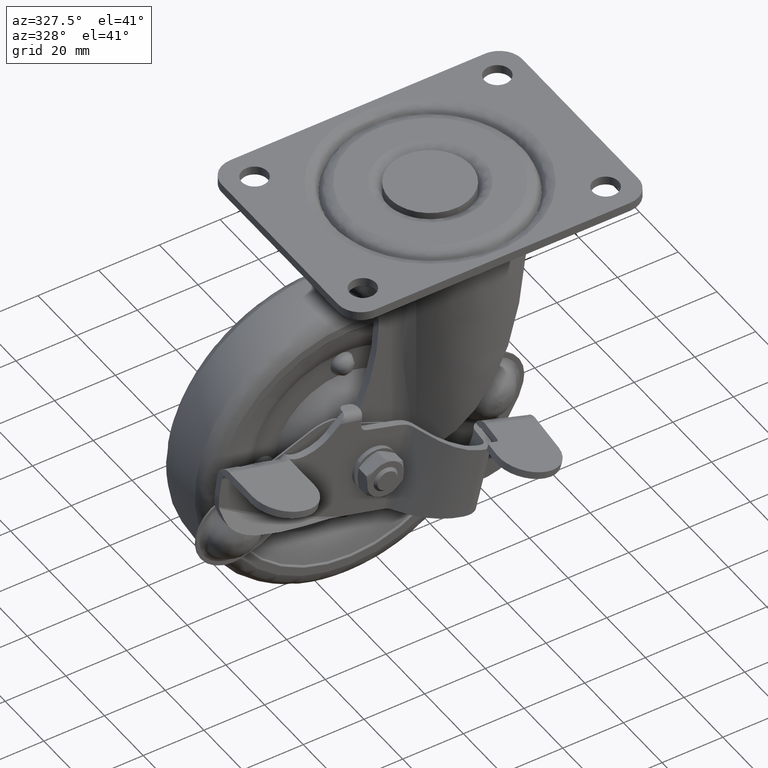
[diagram: clean part render]
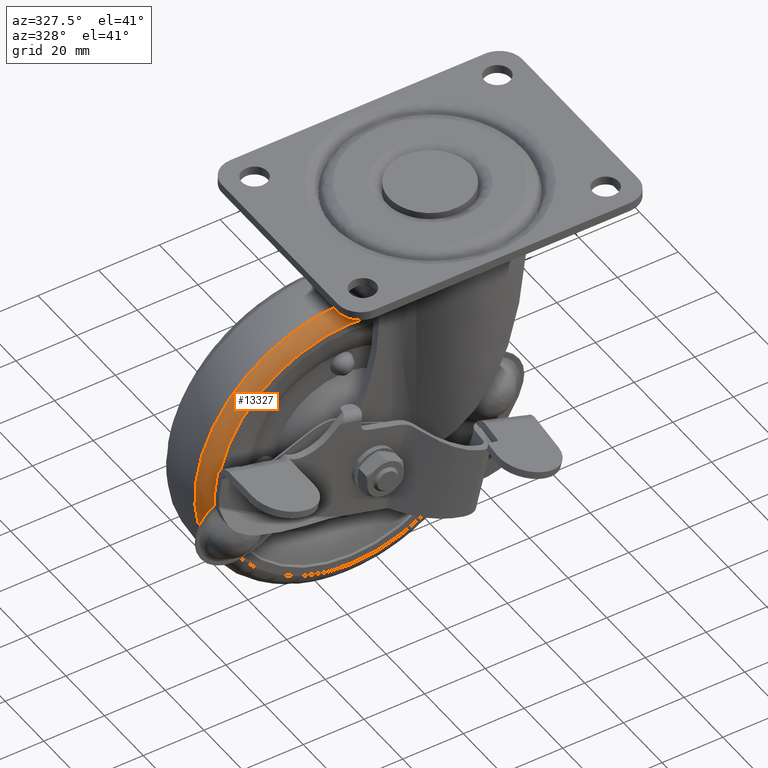
[diagram: same view with one face highlighted and labeled with its STEP entity id]
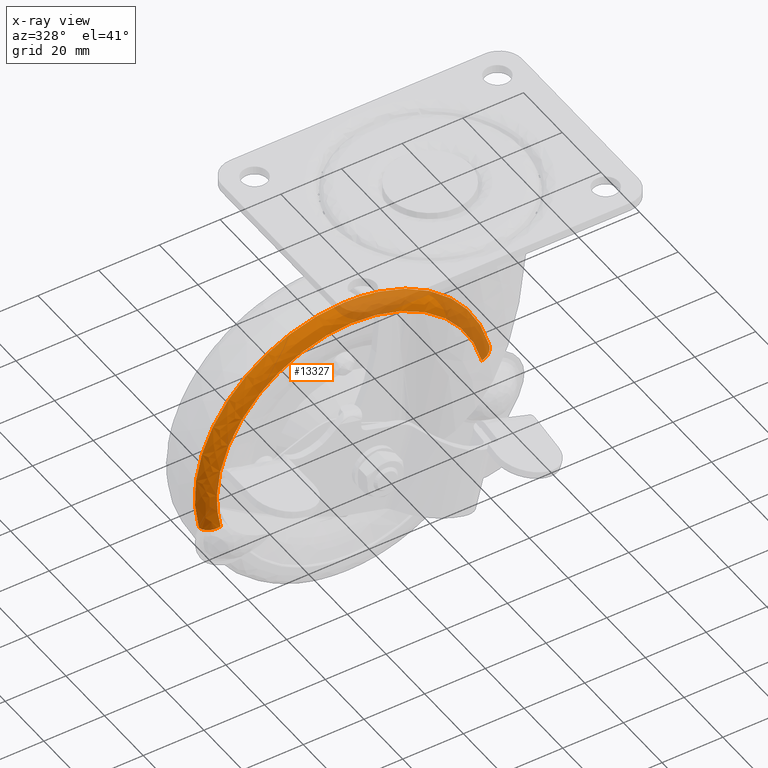
[diagram: x-ray of the same camera — body ghosted, the highlighted face saturated]
A machine part, auxiliary view. The second image highlights one B-rep face of the part: STEP entity #13327.
The next image is the same camera in x-ray: the body ghosted, the highlighted face saturated — about 30% of this face is hidden behind the body in this view.
In plain terms, the highlighted face is a freeform B-spline surface patch.
Its self-contained STEP definition (entity closure, byte-faithful):
#13037=CARTESIAN_POINT('',(-32.999588012695313,-7.200014607207493,-23.876603972467318));
#13038=VERTEX_POINT('',#13037);
#13069=CARTESIAN_POINT('',(-80.729032987226788,-7.200014226633165,-84.617116206622455));
#13070=VERTEX_POINT('',#13069);
#13084=CARTESIAN_POINT('',(-32.999588012695313,-7.200014607207493,-23.876603972467318));
#13085=CARTESIAN_POINT('',(-82.122567914479077,-7.200014457660411,-23.876603829353421));
#13086=CARTESIAN_POINT('',(-82.122567166230013,-7.200014267389626,-72.999580674759656));
#13087=CARTESIAN_POINT('',(-82.122567076476855,-7.200014244566473,-78.891926266701859));
#13088=CARTESIAN_POINT('',(-80.729032987226788,-7.200014226633165,-84.617116206622455));
#13096=(BOUNDED_CURVE()B_SPLINE_CURVE(2,(#13084,#13085,#13086,#13087,#13088),.UNSPECIFIED.,.F.,.U.)B_SPLINE_CURVE_WITH_KNOTS((3,2,3),(0.500000000000000,0.750000000000000,0.790401680328651),.UNSPECIFIED.)CURVE()GEOMETRIC_REPRESENTATION_ITEM()RATIONAL_B_SPLINE_CURVE((1.0,0.707106781186547,1.0,0.952666487212277,0.920631802044407))REPRESENTATION_ITEM(''));
#13097=EDGE_CURVE('',#13038,#13070,#13096,.T.);
#13132=CARTESIAN_POINT('',(14.729856961841030,-7.200014226612886,-61.382045793398248));
#13133=VERTEX_POINT('',#13132);
#13134=CARTESIAN_POINT('',(14.729856961841028,-7.200014226612886,-61.382045793398241));
#13135=CARTESIAN_POINT('',(5.600884008126179,-7.200014416893811,-23.876604154594133));
#13136=CARTESIAN_POINT('',(-32.999588012695313,-7.200014607207493,-23.876603972467318));
#13144=(BOUNDED_CURVE()B_SPLINE_CURVE(2,(#13134,#13135,#13136),.UNSPECIFIED.,.F.,.U.)B_SPLINE_CURVE_WITH_KNOTS((3,3),(0.290401680328583,0.500000000000000),.UNSPECIFIED.)CURVE()GEOMETRIC_REPRESENTATION_ITEM()RATIONAL_B_SPLINE_CURVE((0.920631802044515,0.754440293974191,1.0))REPRESENTATION_ITEM(''));
#13145=EDGE_CURVE('',#13133,#13038,#13144,.T.);
#13197=CARTESIAN_POINT('',(-76.012865986882048,-11.000000502495221,-83.469182553160550));
#13198=VERTEX_POINT('',#13197);
#13214=CARTESIAN_POINT('',(-80.729032987226788,-7.200014226633166,-84.617116206622455));
#13215=CARTESIAN_POINT('',(-79.816217827003697,-11.000000686489175,-84.394933395634595));
#13216=CARTESIAN_POINT('',(-76.012865986882048,-11.000000502495224,-83.469182553160564));
#13224=(BOUNDED_CURVE()B_SPLINE_CURVE(2,(#13214,#13215,#13216),.UNSPECIFIED.,.F.,.U.)B_SPLINE_CURVE_WITH_KNOTS((3,3),(-1.696875843590238,-0.313178854295439),.UNSPECIFIED.)CURVE()GEOMETRIC_REPRESENTATION_ITEM()RATIONAL_B_SPLINE_CURVE((0.897622656615008,0.705698496967039,0.894853527135242))REPRESENTATION_ITEM(''));
#13225=EDGE_CURVE('',#13070,#13198,#13224,.T.);
#13229=CARTESIAN_POINT('',(10.013689961491410,-11.000000502495221,-62.529979446861333));
#13230=VERTEX_POINT('',#13229);
#13231=CARTESIAN_POINT('',(14.729856961841026,-7.200014226612886,-61.382045793398248));
#13232=CARTESIAN_POINT('',(13.817041801629436,-11.000000686489189,-61.604228604383302));
#13233=CARTESIAN_POINT('',(10.013689961491409,-11.000000502495224,-62.529979446861333));
#13241=(BOUNDED_CURVE()B_SPLINE_CURVE(2,(#13231,#13232,#13233),.UNSPECIFIED.,.F.,.U.)B_SPLINE_CURVE_WITH_KNOTS((3,3),(-1.696875843594934,-0.313178854295435),.UNSPECIFIED.)CURVE()GEOMETRIC_REPRESENTATION_ITEM()RATIONAL_B_SPLINE_CURVE((0.897622656616311,0.705698496966396,0.894853527135243))REPRESENTATION_ITEM(''));
#13242=EDGE_CURVE('',#13133,#13230,#13241,.T.);
#13262=CARTESIAN_POINT('',(15.117216313480851,-6.902771123071280,-62.703015740041181));
#13263=CARTESIAN_POINT('',(14.955557643889319,-6.902771123071278,-62.038857772131756));
#13264=CARTESIAN_POINT('',(3.159342734785007,-6.902771123071280,-13.575325671751878));
#13265=CARTESIAN_POINT('',(-44.632250303084689,-6.902771123071279,-25.207987962141242));
#13266=CARTESIAN_POINT('',(-92.423843340954406,-6.902771123071280,-36.840650252530629));
#13267=CARTESIAN_POINT('',(-80.627628431793681,-6.902771123071279,-85.304182353142281));
#13268=CARTESIAN_POINT('',(-80.465969762147040,-6.902771123071278,-85.968340321278134));
#13269=CARTESIAN_POINT('',(14.334599417970438,-11.260878595207080,-62.870488747673861));
#13270=CARTESIAN_POINT('',(14.175570116806419,-11.260878595207080,-62.217133268712999));
#13271=CARTESIAN_POINT('',(2.571219925657097,-11.260878595207076,-14.541857570000149));
#13272=CARTESIAN_POINT('',(-44.443045758524498,-11.260878595207080,-25.985315315829350));
#13273=CARTESIAN_POINT('',(-91.457311442706114,-11.260878595207076,-37.428773061658525));
#13274=CARTESIAN_POINT('',(-79.852961251501284,-11.260878595207080,-85.104048760599383));
#13275=CARTESIAN_POINT('',(-79.693931950283073,-11.260878595207080,-85.757404239782971));
#13276=CARTESIAN_POINT('',(10.008137128252727,-10.990696548790076,-63.796312936015511));
#13277=CARTESIAN_POINT('',(9.863643500178156,-10.990696548790078,-63.202675770496612));
#13278=CARTESIAN_POINT('',(-0.680040263091186,-10.990696548790071,-19.885038676323237));
#13279=CARTESIAN_POINT('',(-43.397085299737107,-10.990696548790076,-30.282535963365024));
#13280=CARTESIAN_POINT('',(-86.114130336383027,-10.990696548790071,-40.680033250406822));
#13281=CARTESIAN_POINT('',(-75.570446573063265,-10.990696548790075,-83.997670344787338));
#13282=CARTESIAN_POINT('',(-75.425952944939439,-10.990696548790075,-84.591307510508628));
#13290=(BOUNDED_SURFACE()B_SPLINE_SURFACE(2,2,((#13262,#13269,#13276),(#13263,#13270,#13277),(#13264,#13271,#13278),(#13265,#13272,#13279),(#13266,#13273,#13280),(#13267,#13274,#13281),(#13268,#13275,#13282)),.UNSPECIFIED.,.F.,.F.,.U.)B_SPLINE_SURFACE_WITH_KNOTS((3,1,2,1,3),(3,3),(0.0,1.629911855107965,83.125504611503231,164.621097367898500,166.251009223572000),(0.0,7.588516623957120),.UNSPECIFIED.)GEOMETRIC_REPRESENTATION_ITEM()RATIONAL_B_SPLINE_SURFACE(((0.928498733912104,0.693746430741057,0.925417291315293),(0.923122698428861,0.689729618125360,0.920059097476992),(0.648944888780171,0.484872174722335,0.646791211720382),(0.917746662945617,0.685712805509662,0.914700903638692),(0.648944888780171,0.484872174722335,0.646791211720382),(0.923122698430726,0.689729618126753,0.920059097478851),(0.928498733915834,0.693746430743844,0.925417291319011)))REPRESENTATION_ITEM('')SURFACE());
#13291=CARTESIAN_POINT('',(-32.999588012695313,-11.000000502495221,-28.730464925217198));
#13292=VERTEX_POINT('',#13291);
#13293=CARTESIAN_POINT('',(-32.999588012695313,-11.000000502495221,-28.730464925217198));
#13294=CARTESIAN_POINT('',(-77.268704090605581,-11.000000502495222,-28.730464925975788));
#13295=CARTESIAN_POINT('',(-77.268704094571689,-11.000000502495221,-72.999581001734896));
#13296=CARTESIAN_POINT('',(-77.268704095047411,-11.000000502495226,-78.309701231937140));
#13297=CARTESIAN_POINT('',(-76.012865986882048,-11.000000502495231,-83.469182553160550));
#13305=(BOUNDED_CURVE()B_SPLINE_CURVE(2,(#13293,#13294,#13295,#13296,#13297),.UNSPECIFIED.,.F.,.U.)B_SPLINE_CURVE_WITH_KNOTS((3,2,3),(0.500000000000000,0.750000000000000,0.790401677694276),.UNSPECIFIED.)CURVE()GEOMETRIC_REPRESENTATION_ITEM()RATIONAL_B_SPLINE_CURVE((1.0,0.707106781186548,1.0,0.952666490298640,0.920631806222025))REPRESENTATION_ITEM(''));
#13306=EDGE_CURVE('',#13292,#13198,#13305,.T.);
#13307=ORIENTED_EDGE('',*,*,#13306,.F.);
#13308=CARTESIAN_POINT('',(10.013689961491409,-11.000000502495231,-62.529979446861333));
#13309=CARTESIAN_POINT('',(1.786754778018959,-11.000000502495221,-28.730464924251837));
#13310=CARTESIAN_POINT('',(-32.999588012695313,-11.000000502495221,-28.730464925217198));
#13318=(BOUNDED_CURVE()B_SPLINE_CURVE(2,(#13308,#13309,#13310),.UNSPECIFIED.,.F.,.U.)B_SPLINE_CURVE_WITH_KNOTS((3,3),(0.290401677694276,0.500000000000000),.UNSPECIFIED.)CURVE()GEOMETRIC_REPRESENTATION_ITEM()RATIONAL_B_SPLINE_CURVE((0.920631806222025,0.754440290887908,1.0))REPRESENTATION_ITEM(''));
#13319=EDGE_CURVE('',#13230,#13292,#13318,.T.);
#13320=ORIENTED_EDGE('',*,*,#13319,.F.);
#13321=ORIENTED_EDGE('',*,*,#13242,.F.);
#13322=ORIENTED_EDGE('',*,*,#13145,.T.);
#13323=ORIENTED_EDGE('',*,*,#13097,.T.);
#13324=ORIENTED_EDGE('',*,*,#13225,.T.);
#13325=EDGE_LOOP('',(#13307,#13320,#13321,#13322,#13323,#13324));
#13326=FACE_OUTER_BOUND('',#13325,.T.);
#13327=ADVANCED_FACE('',(#13326),#13290,.T.);